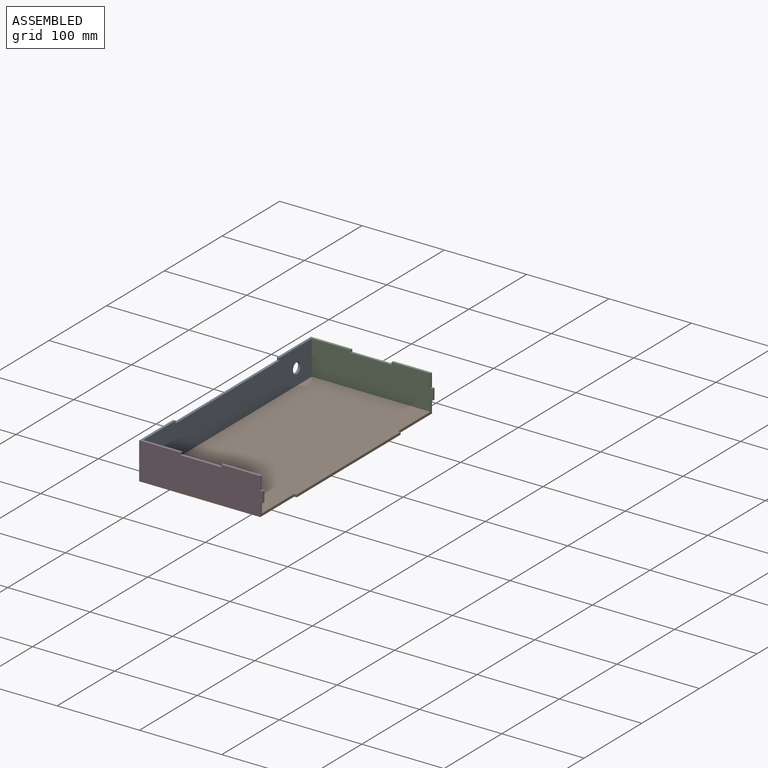
[diagram: assembled view]
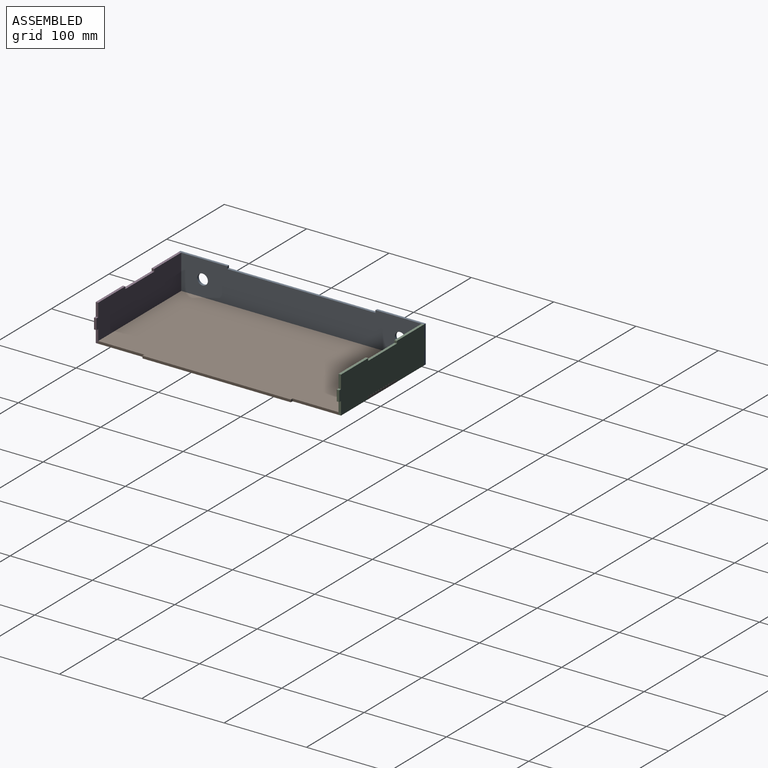
[diagram: assembled view, second angle]
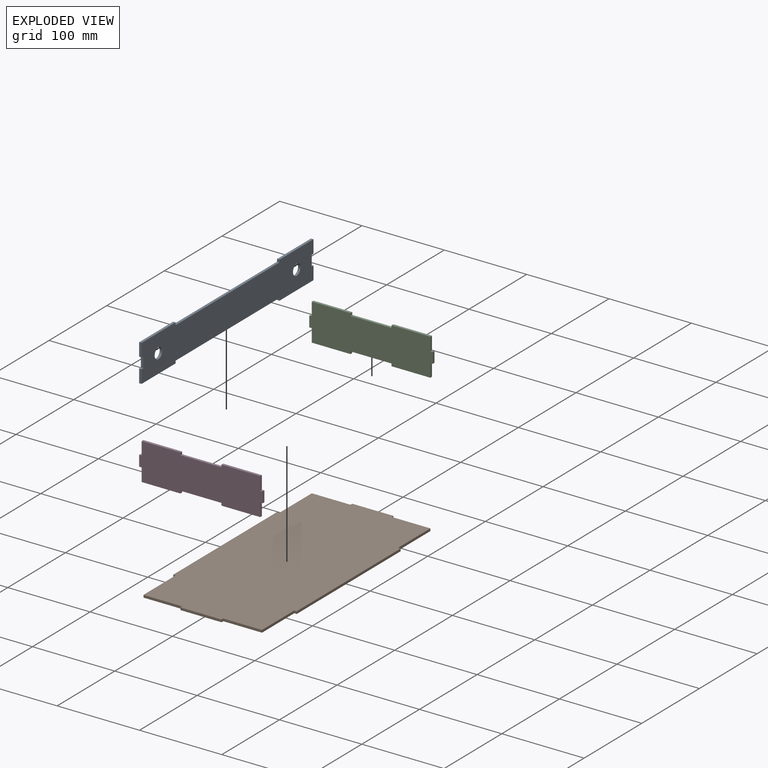
[diagram: exploded view]
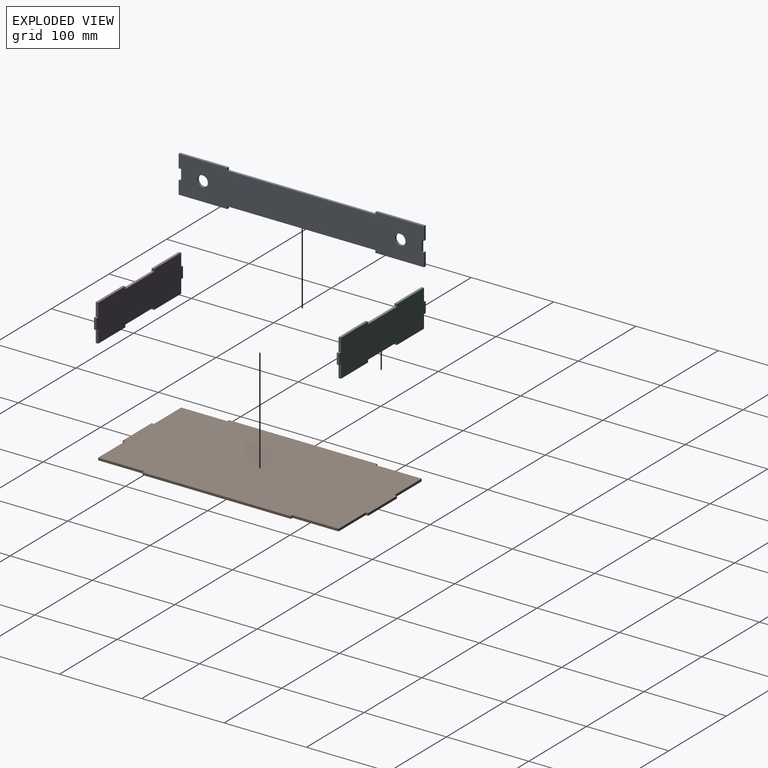
[diagram: exploded view, second angle]
ASSEMBLY  parts=4 mates=3
PART A: 24 faces, bbox 298x45x3 mm
  f0: plane 3x3mm, normal (0,-1,0), area 9mm2, adj f1,f19,f22,f23
  f1: plane 13x3mm, normal (-1,0,0), area 39mm2, adj f0,f2,f22,f23
  f2: plane 3x3mm, normal (0,1,0), area 9mm2, adj f1,f3,f22,f23
  f3: plane 16x3mm, normal (-1,0,0), area 48mm2, adj f2,f4,f22,f23
  f4: plane 59x3mm, normal (0,-1,0), area 177mm2, adj f3,f5,f22,f23
  f5: plane 3x3mm, normal (1,0,0), area 9mm2, adj f4,f6,f22,f23
  f6: plane 180x3mm, normal (0,-1,0), area 540mm2, adj f5,f7,f22,f23
  f7: plane 3x3mm, normal (-1,0,0), area 9mm2, adj f6,f8,f22,f23
  f8: plane 59x3mm, normal (0,-1,0), area 177mm2, adj f7,f9,f22,f23
  f9: plane 16x3mm, normal (1,0,0), area 48mm2, adj f8,f10,f22,f23
  f10: plane 3x3mm, normal (0,1,0), area 9mm2, adj f9,f11,f22,f23
  f11: plane 13x3mm, normal (1,0,0), area 39mm2, adj f10,f12,f22,f23
  f12: plane 3x3mm, normal (0,-1,0), area 9mm2, adj f11,f13,f22,f23
  f13: plane 16x3mm, normal (1,0,0), area 48mm2, adj f12,f14,f22,f23
  f14: plane 59x3mm, normal (0,1,0), area 177mm2, adj f13,f15,f22,f23
  f15: plane 3x3mm, normal (-1,0,0), area 9mm2, adj f14,f16,f22,f23
  f16: plane 180x3mm, normal (0,1,0), area 540mm2, adj f15,f17,f22,f23
  f17: plane 3x3mm, normal (1,0,0), area 9mm2, adj f16,f18,f22,f23
  f18: plane 59x3mm, normal (0,1,0), area 177mm2, adj f17,f19,f22,f23
  f19: plane 16x3mm, normal (-1,0,0), area 48mm2, adj f0,f18,f22,f23
  f20: cylinder r=6.5mm len=13mm, axis (0,0,-1), area 122.5mm2, adj f22,f23
  f21: cylinder r=6.5mm len=13mm, axis (0,0,-1), area 122.5mm2, adj f22,f23
  f22: plane 298x45mm, normal (0,0,1), area 11986.5mm2, adj f0,f1,f2,f3,f4,f5,f6,f7
  f23: plane 298x45mm, normal (0,0,-1), area 11986.5mm2, adj f0,f1,f2,f3,f4,f5,f6,f7
PART B: 22 faces, bbox 150x298x3 mm
  f0: plane 47x3mm, normal (0,1,0), area 141mm2, adj f1,f19,f20,f21
  f1: plane 55.9x3mm, normal (-1,0,0), area 167.7mm2, adj f0,f2,f20,f21
  f2: plane 3x3mm, normal (0,1,0), area 9mm2, adj f1,f3,f20,f21
  f3: plane 180.2x3mm, normal (-1,0,0), area 540.6mm2, adj f2,f4,f20,f21
  f4: plane 3x3mm, normal (0,-1,0), area 9mm2, adj f3,f5,f20,f21
  f5: plane 55.9x3mm, normal (-1,0,0), area 167.7mm2, adj f4,f6,f20,f21
  f6: plane 47x3mm, normal (0,-1,0), area 141mm2, adj f5,f7,f20,f21
  f7: plane 3x3mm, normal (-1,0,0), area 9mm2, adj f6,f8,f20,f21
  f8: plane 50x3mm, normal (0,-1,0), area 150mm2, adj f7,f9,f20,f21
  f9: plane 3x3mm, normal (1,0,0), area 9mm2, adj f8,f10,f20,f21
  f10: plane 47x3mm, normal (0,-1,0), area 141mm2, adj f9,f11,f20,f21
  f11: plane 55.9x3mm, normal (1,0,0), area 167.7mm2, adj f10,f12,f20,f21
  f12: plane 3x3mm, normal (0,-1,0), area 9mm2, adj f11,f13,f20,f21
  f13: plane 180.2x3mm, normal (1,0,0), area 540.6mm2, adj f12,f14,f20,f21
  f14: plane 3x3mm, normal (0,1,0), area 9mm2, adj f13,f15,f20,f21
  f15: plane 55.9x3mm, normal (1,0,0), area 167.7mm2, adj f14,f16,f20,f21
  f16: plane 47x3mm, normal (0,1,0), area 141mm2, adj f15,f17,f20,f21
  f17: plane 3x3mm, normal (1,0,0), area 9mm2, adj f16,f18,f20,f21
  f18: plane 50x3mm, normal (0,1,0), area 150mm2, adj f17,f19,f20,f21
  f19: plane 3x3mm, normal (-1,0,0), area 9mm2, adj f0,f18,f20,f21
  f20: plane 298x150mm, normal (0,0,1), area 43429.2mm2, adj f0,f1,f2,f3,f4,f5,f6,f7
  f21: plane 298x150mm, normal (0,0,-1), area 43429.2mm2, adj f0,f1,f2,f3,f4,f5,f6,f7
PART C: 22 faces, bbox 150x45x3 mm
  f0: plane 47.1x3mm, normal (0,1,0), area 141.3mm2, adj f1,f19,f20,f21
  f1: plane 16x3mm, normal (-1,0,0), area 48mm2, adj f0,f2,f20,f21
  f2: plane 3x3mm, normal (0,1,0), area 9mm2, adj f1,f3,f20,f21
  f3: plane 13x3mm, normal (-1,0,0), area 39mm2, adj f2,f4,f20,f21
  f4: plane 3x3mm, normal (0,-1,0), area 9mm2, adj f3,f5,f20,f21
  f5: plane 16x3mm, normal (-1,0,0), area 48mm2, adj f4,f6,f20,f21
  f6: plane 47.1x3mm, normal (0,-1,0), area 141.3mm2, adj f5,f7,f20,f21
  f7: plane 3x3mm, normal (1,0,0), area 9mm2, adj f6,f8,f20,f21
  f8: plane 49.8x3mm, normal (0,-1,0), area 149.4mm2, adj f7,f9,f20,f21
  f9: plane 3x3mm, normal (-1,0,0), area 9mm2, adj f8,f10,f20,f21
  f10: plane 47.1x3mm, normal (0,-1,0), area 141.3mm2, adj f9,f11,f20,f21
  f11: plane 16x3mm, normal (1,0,0), area 48mm2, adj f10,f12,f20,f21
  f12: plane 3x3mm, normal (0,-1,0), area 9mm2, adj f11,f13,f20,f21
  f13: plane 13x3mm, normal (1,0,0), area 39mm2, adj f12,f14,f20,f21
  f14: plane 3x3mm, normal (0,1,0), area 9mm2, adj f13,f15,f20,f21
  f15: plane 16x3mm, normal (1,0,0), area 48mm2, adj f14,f16,f20,f21
  f16: plane 47.1x3mm, normal (0,1,0), area 141.3mm2, adj f15,f17,f20,f21
  f17: plane 3x3mm, normal (-1,0,0), area 9mm2, adj f16,f18,f20,f21
  f18: plane 49.8x3mm, normal (0,1,0), area 149.4mm2, adj f17,f19,f20,f21
  f19: plane 3x3mm, normal (1,0,0), area 9mm2, adj f0,f18,f20,f21
  f20: plane 150x45mm, normal (0,0,1), area 6259.2mm2, adj f0,f1,f2,f3,f4,f5,f6,f7
  f21: plane 150x45mm, normal (0,0,-1), area 6259.2mm2, adj f0,f1,f2,f3,f4,f5,f6,f7
PART D: same geometry as C
PLACE A rot(axis=(0.58,0.58,0.58),120deg) t=(27.43,-5,-36.35)mm
PLACE B t=(102.43,-4.9,-58.85)mm
PLACE C rot(axis=(1,0,0),90deg) t=(102.43,144,-36.35)mm
PLACE D rot(axis=(-1,0,0),90deg) t=(102.33,-153.9,-36.35)mm
MATE fastened A.f5 <-> B.f4  axis (0,1,0) through (28.93,-95,-57.35)mm
MATE fastened B.f7 <-> D.f19  axis (-1,0,0) through (77.43,-152.4,-57.35)mm
MATE fastened A.f10 <-> C.f4  axis (0,0,1) through (28.93,142.5,-42.85)mm
